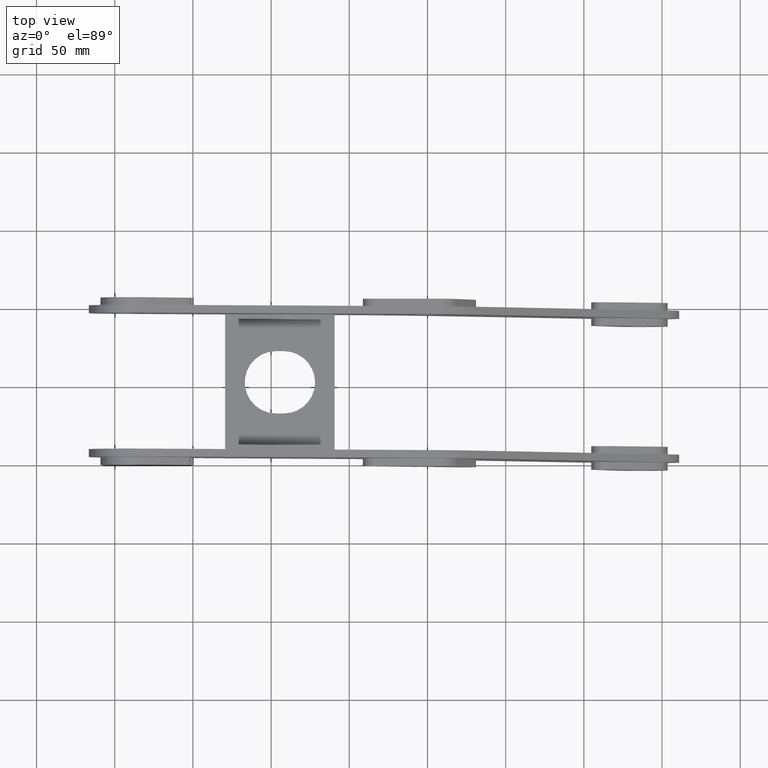
[diagram: clean part render]
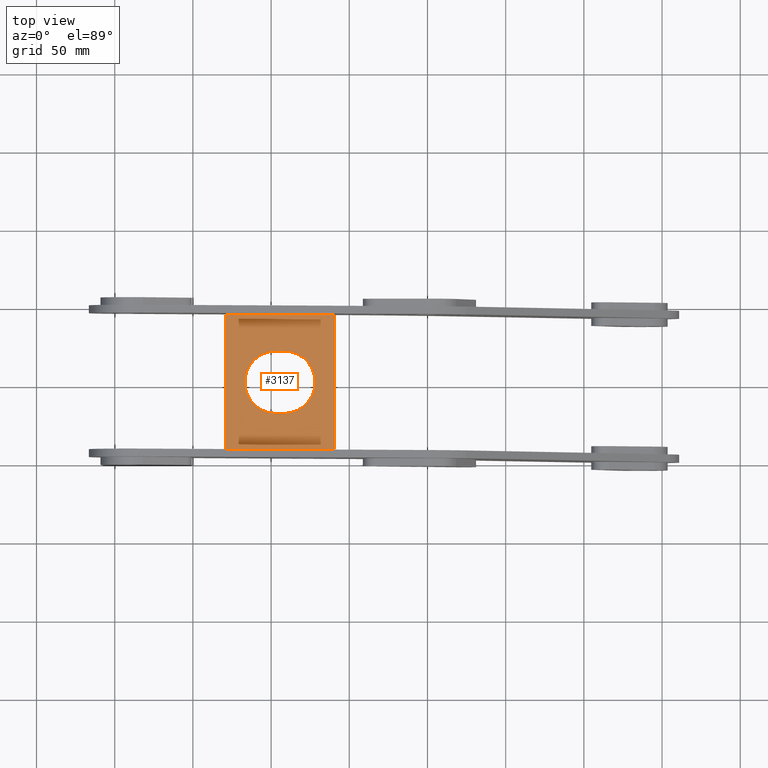
[diagram: same view with one face highlighted and labeled with its STEP entity id]
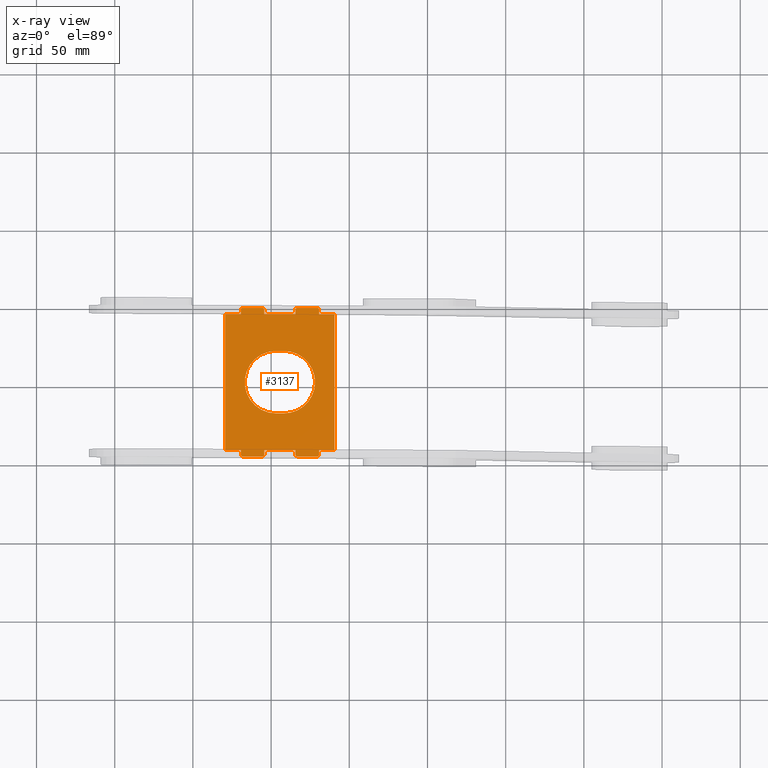
[diagram: x-ray of the same camera — body ghosted, the highlighted face saturated]
A machine part, top view. The second image highlights one B-rep face of the part: STEP entity #3137.
The next image is the same camera in x-ray: the body ghosted, the highlighted face saturated — about 0% of this face is hidden behind the body in this view.
In plain terms, the highlighted planar face has unit normal (0, 0, -1).
Its self-contained STEP definition (entity closure, byte-faithful):
#41 = CARTESIAN_POINT ( 'NONE',  ( 35.00000000000001421, -43.49999999999998579, 2.500000000000000000 ) ) ;
#45 = ORIENTED_EDGE ( 'NONE', *, *, #3278, .F. ) ;
#62 = CIRCLE ( 'NONE', #2350, 1.000000000000000888 ) ;
#71 = B_SPLINE_CURVE_WITH_KNOTS ( 'NONE', 1,
 ( #2461, #3650 ),
 .UNSPECIFIED., .F., .F.,
 ( 2, 2 ),
 ( 0.6500000000000000222, 0.9749999999999999778 ),
 .UNSPECIFIED. ) ;
#74 = DIRECTION ( 'NONE',  ( -1.000000000000000000, -1.982541115402065110E-16, 0.000000000000000000 ) ) ;
#89 = CARTESIAN_POINT ( 'NONE',  ( 10.00000000000001599, -46.49999999999998579, 2.500000000000000000 ) ) ;
#90 = VERTEX_POINT ( 'NONE', #317 ) ;
#100 = EDGE_CURVE ( 'NONE', #1893, #533, #3109, .T. ) ;
#102 = VERTEX_POINT ( 'NONE', #2080 ) ;
#109 = VERTEX_POINT ( 'NONE', #3751 ) ;
#110 = DIRECTION ( 'NONE',  ( -0.000000000000000000, 1.000000000000000000, -0.000000000000000000 ) ) ;
#134 = DIRECTION ( 'NONE',  ( -0.000000000000000000, 1.000000000000000000, -0.000000000000000000 ) ) ;
#142 = CARTESIAN_POINT ( 'NONE',  ( 0.000000000000000000, 0.000000000000000000, 2.500000000000000000 ) ) ;
#167 = ORIENTED_EDGE ( 'NONE', *, *, #3090, .F. ) ;
#178 = DIRECTION ( 'NONE',  ( 1.000000000000000000, 0.000000000000000000, 0.000000000000000000 ) ) ;
#194 = CARTESIAN_POINT ( 'NONE',  ( -10.99999999999998934, 46.49999999999998579, 2.500000000000000000 ) ) ;
#213 = DIRECTION ( 'NONE',  ( 1.000000000000000000, 0.000000000000000000, 0.000000000000000000 ) ) ;
#234 = CARTESIAN_POINT ( 'NONE',  ( -34.99999999999999289, -43.50000000000000000, 2.500000000000000000 ) ) ;
#237 = CARTESIAN_POINT ( 'NONE',  ( 24.00000000000001421, -46.49999999999998579, 2.500000000000000000 ) ) ;
#247 = ORIENTED_EDGE ( 'NONE', *, *, #1528, .T. ) ;
#253 = AXIS2_PLACEMENT_3D ( 'NONE', #1263, #398, #982 ) ;
#255 = CARTESIAN_POINT ( 'NONE',  ( -23.99999999999998579, 47.49999999999998579, 2.500000000000000000 ) ) ;
#286 = DIRECTION ( 'NONE',  ( 0.000000000000000000, -1.000000000000000000, 0.000000000000000000 ) ) ;
#317 = CARTESIAN_POINT ( 'NONE',  ( 10.00000000000001599, 46.49999999999998579, 2.500000000000000000 ) ) ;
#351 = ORIENTED_EDGE ( 'NONE', *, *, #100, .T. ) ;
#356 = CARTESIAN_POINT ( 'NONE',  ( -9.999999999999987566, 43.50000000000000711, 2.500000000000000000 ) ) ;
#362 = ORIENTED_EDGE ( 'NONE', *, *, #2855, .T. ) ;
#370 = VERTEX_POINT ( 'NONE', #1641 ) ;
#375 = LINE ( 'NONE', #2949, #430 ) ;
#376 = AXIS2_PLACEMENT_3D ( 'NONE', #1761, #403, #701 ) ;
#384 = EDGE_LOOP ( 'NONE', ( #3688, #2824, #45, #351, #1933, #2879, #247, #362, #2997, #3172, #2105, #1186, #1537, #2568, #1014, #3012, #2524, #386, #2131, #1181, #2505, #1505, #3228, #456, #1609, #1276, #1494, #2766 ) ) ;
#386 = ORIENTED_EDGE ( 'NONE', *, *, #3055, .F. ) ;
#392 = CARTESIAN_POINT ( 'NONE',  ( -10.99999999999998934, -47.49999999999998579, 2.500000000000000000 ) ) ;
#396 = CARTESIAN_POINT ( 'NONE',  ( -24.99999999999998579, -46.49999999999998579, 2.500000000000000000 ) ) ;
#398 = DIRECTION ( 'NONE',  ( 0.000000000000000000, 0.000000000000000000, 1.000000000000000000 ) ) ;
#403 = DIRECTION ( 'NONE',  ( 0.000000000000000000, 0.000000000000000000, 1.000000000000000000 ) ) ;
#430 = VECTOR ( 'NONE', #1473, 1000.000000000000000 ) ;
#435 = VECTOR ( 'NONE', #721, 1000.000000000000000 ) ;
#445 = DIRECTION ( 'NONE',  ( -0.000000000000000000, -0.000000000000000000, -1.000000000000000000 ) ) ;
#450 = CARTESIAN_POINT ( 'NONE',  ( 10.00000000000001599, -47.49999999999998579, 2.500000000000000000 ) ) ;
#456 = ORIENTED_EDGE ( 'NONE', *, *, #2857, .F. ) ;
#482 = CARTESIAN_POINT ( 'NONE',  ( 25.00000000000001421, -47.49999999999998579, 2.500000000000000000 ) ) ;
#523 = CARTESIAN_POINT ( 'NONE',  ( 35.00000000000000000, 43.50000000000001421, 2.500000000000000000 ) ) ;
#533 = VERTEX_POINT ( 'NONE', #3528 ) ;
#545 = DIRECTION ( 'NONE',  ( 1.000000000000000000, 1.982541115402065110E-16, -0.000000000000000000 ) ) ;
#569 = AXIS2_PLACEMENT_3D ( 'NONE', #3135, #1377, #213 ) ;
#575 = EDGE_CURVE ( 'NONE', #2495, #1503, #2082, .T. ) ;
#603 = VERTEX_POINT ( 'NONE', #234 ) ;
#616 = EDGE_CURVE ( 'NONE', #370, #2397, #2530, .T. ) ;
#667 = VERTEX_POINT ( 'NONE', #3798 ) ;
#674 = VERTEX_POINT ( 'NONE', #3816 ) ;
#690 = CIRCLE ( 'NONE', #3025, 1.000000000000000888 ) ;
#701 = DIRECTION ( 'NONE',  ( 1.000000000000000000, 0.000000000000000000, 0.000000000000000000 ) ) ;
#703 = EDGE_CURVE ( 'NONE', #1754, #853, #2694, .T. ) ;
#721 = DIRECTION ( 'NONE',  ( -1.000000000000000000, -1.982541115402065110E-16, 0.000000000000000000 ) ) ;
#726 = DIRECTION ( 'NONE',  ( 1.000000000000000000, 0.000000000000000000, 0.000000000000000000 ) ) ;
#738 = CARTESIAN_POINT ( 'NONE',  ( 24.00000000000001421, 47.49999999999998579, 2.500000000000000000 ) ) ;
#753 = CIRCLE ( 'NONE', #1789, 1.000000000000000888 ) ;
#759 = DIRECTION ( 'NONE',  ( -1.000000000000000000, 0.000000000000000000, -0.000000000000000000 ) ) ;
#766 = CARTESIAN_POINT ( 'NONE',  ( 35.00000000000001421, -43.49999999999998579, 2.500000000000000000 ) ) ;
#786 = CARTESIAN_POINT ( 'NONE',  ( 24.00000000000001421, 47.49999999999998579, 2.500000000000000000 ) ) ;
#792 = DIRECTION ( 'NONE',  ( 0.000000000000000000, 0.000000000000000000, -1.000000000000000000 ) ) ;
#804 = CIRCLE ( 'NONE', #3455, 1.000000000000000888 ) ;
#811 = CARTESIAN_POINT ( 'NONE',  ( -24.99999999999998579, 47.49999999999998579, 2.500000000000000000 ) ) ;
#837 = LINE ( 'NONE', #2377, #2967 ) ;
#853 = VERTEX_POINT ( 'NONE', #2456 ) ;
#879 = CARTESIAN_POINT ( 'NONE',  ( 35.00000000000001421, -43.49999999999998579, 2.500000000000000000 ) ) ;
#881 = AXIS2_PLACEMENT_3D ( 'NONE', #142, #792, #759 ) ;
#934 = VECTOR ( 'NONE', #2481, 1000.000000000000000 ) ;
#944 = EDGE_CURVE ( 'NONE', #2627, #667, #2823, .T. ) ;
#971 = DIRECTION ( 'NONE',  ( 1.000000000000000000, 0.000000000000000000, 0.000000000000000000 ) ) ;
#982 = DIRECTION ( 'NONE',  ( 1.000000000000000000, 0.000000000000000000, 0.000000000000000000 ) ) ;
#991 = EDGE_CURVE ( 'NONE', #1184, #2495, #690, .T. ) ;
#1006 = CARTESIAN_POINT ( 'NONE',  ( 35.00000000000000000, 43.50000000000001421, 2.500000000000000000 ) ) ;
#1014 = ORIENTED_EDGE ( 'NONE', *, *, #1336, .T. ) ;
#1019 = LINE ( 'NONE', #1589, #2588 ) ;
#1034 = VERTEX_POINT ( 'NONE', #3698 ) ;
#1093 = CARTESIAN_POINT ( 'NONE',  ( 35.00000000000001421, -43.49999999999998579, 2.500000000000000000 ) ) ;
#1125 = CARTESIAN_POINT ( 'NONE',  ( -9.999999999999987566, -46.49999999999998579, 2.500000000000000000 ) ) ;
#1132 = DIRECTION ( 'NONE',  ( -0.000000000000000000, 0.000000000000000000, 1.000000000000000000 ) ) ;
#1136 = EDGE_CURVE ( 'NONE', #667, #2399, #1716, .T. ) ;
#1167 = DIRECTION ( 'NONE',  ( -1.000000000000000000, -0.000000000000000000, -0.000000000000000000 ) ) ;
#1181 = ORIENTED_EDGE ( 'NONE', *, *, #3728, .F. ) ;
#1184 = VERTEX_POINT ( 'NONE', #1756 ) ;
#1186 = ORIENTED_EDGE ( 'NONE', *, *, #2284, .T. ) ;
#1191 = CARTESIAN_POINT ( 'NONE',  ( -23.99999999999998579, 47.49999999999998579, 2.500000000000000000 ) ) ;
#1194 = CARTESIAN_POINT ( 'NONE',  ( 25.00000000000001421, 43.50000000000001421, 2.500000000000000000 ) ) ;
#1237 = CARTESIAN_POINT ( 'NONE',  ( 35.00000000000000000, 43.50000000000001421, 2.500000000000000000 ) ) ;
#1263 = CARTESIAN_POINT ( 'NONE',  ( 2.500000000000000000, -3.469446951953614189E-15, 2.500000000000000000 ) ) ;
#1269 = CARTESIAN_POINT ( 'NONE',  ( -9.999999999999987566, -47.49999999999998579, 2.500000000000000000 ) ) ;
#1270 = DIRECTION ( 'NONE',  ( -0.000000000000000000, -0.000000000000000000, -1.000000000000000000 ) ) ;
#1276 = ORIENTED_EDGE ( 'NONE', *, *, #991, .F. ) ;
#1294 = VERTEX_POINT ( 'NONE', #1125 ) ;
#1300 = LINE ( 'NONE', #3707, #1850 ) ;
#1301 = DIRECTION ( 'NONE',  ( -0.000000000000000000, -0.000000000000000000, -1.000000000000000000 ) ) ;
#1304 = CARTESIAN_POINT ( 'NONE',  ( 2.499999999999996447, -20.00000000000000000, 2.500000000000000000 ) ) ;
#1317 = CARTESIAN_POINT ( 'NONE',  ( 25.00000000000001421, -46.49999999999998579, 2.500000000000000000 ) ) ;
#1329 = EDGE_CURVE ( 'NONE', #2397, #1596, #837, .T. ) ;
#1336 = EDGE_CURVE ( 'NONE', #2399, #109, #1773, .T. ) ;
#1343 = FACE_BOUND ( 'NONE', #2500, .T. ) ;
#1362 = VECTOR ( 'NONE', #2433, 1000.000000000000000 ) ;
#1377 = DIRECTION ( 'NONE',  ( -0.000000000000000000, 0.000000000000000000, 1.000000000000000000 ) ) ;
#1394 = EDGE_CURVE ( 'NONE', #2980, #3490, #2513, .T. ) ;
#1404 = CARTESIAN_POINT ( 'NONE',  ( -24.99999999999998579, -47.49999999999998579, 2.500000000000000000 ) ) ;
#1412 = CARTESIAN_POINT ( 'NONE',  ( -2.500000000000000000, -3.469446951953614189E-15, 2.500000000000000000 ) ) ;
#1414 = DIRECTION ( 'NONE',  ( 1.000000000000000000, 0.000000000000000000, 0.000000000000000000 ) ) ;
#1470 = DIRECTION ( 'NONE',  ( -0.000000000000000000, 0.000000000000000000, 1.000000000000000000 ) ) ;
#1473 = DIRECTION ( 'NONE',  ( 0.000000000000000000, -1.000000000000000000, 0.000000000000000000 ) ) ;
#1482 = VECTOR ( 'NONE', #2986, 1000.000000000000000 ) ;
#1485 = VERTEX_POINT ( 'NONE', #3656 ) ;
#1494 = ORIENTED_EDGE ( 'NONE', *, *, #1718, .T. ) ;
#1503 = VERTEX_POINT ( 'NONE', #2122 ) ;
#1505 = ORIENTED_EDGE ( 'NONE', *, *, #3091, .T. ) ;
#1528 = EDGE_CURVE ( 'NONE', #1294, #674, #2760, .T. ) ;
#1537 = ORIENTED_EDGE ( 'NONE', *, *, #944, .T. ) ;
#1548 = CIRCLE ( 'NONE', #376, 19.99999999999999645 ) ;
#1581 = CARTESIAN_POINT ( 'NONE',  ( 11.00000000000001599, -47.49999999999998579, 2.500000000000000000 ) ) ;
#1589 = CARTESIAN_POINT ( 'NONE',  ( -35.00000000000000000, 43.50000000000000000, 2.500000000000000000 ) ) ;
#1593 = ORIENTED_EDGE ( 'NONE', *, *, #616, .F. ) ;
#1596 = VERTEX_POINT ( 'NONE', #1304 ) ;
#1605 = VECTOR ( 'NONE', #1167, 1000.000000000000000 ) ;
#1609 = ORIENTED_EDGE ( 'NONE', *, *, #575, .F. ) ;
#1641 = CARTESIAN_POINT ( 'NONE',  ( -2.500000000000000000, 19.99999999999999645, 2.500000000000000000 ) ) ;
#1660 = VECTOR ( 'NONE', #3221, 1000.000000000000000 ) ;
#1716 = LINE ( 'NONE', #879, #1790 ) ;
#1718 = EDGE_CURVE ( 'NONE', #1184, #1754, #2642, .T. ) ;
#1726 = VECTOR ( 'NONE', #74, 1000.000000000000000 ) ;
#1754 = VERTEX_POINT ( 'NONE', #2045 ) ;
#1756 = CARTESIAN_POINT ( 'NONE',  ( -24.99999999999998579, 46.49999999999998579, 2.500000000000000000 ) ) ;
#1761 = CARTESIAN_POINT ( 'NONE',  ( 2.500000000000000000, -3.469446951953614189E-15, 2.500000000000000000 ) ) ;
#1773 = LINE ( 'NONE', #523, #2781 ) ;
#1776 = DIRECTION ( 'NONE',  ( 0.000000000000000000, 0.000000000000000000, 1.000000000000000000 ) ) ;
#1785 = CARTESIAN_POINT ( 'NONE',  ( 24.00000000000001421, -47.49999999999998579, 2.500000000000000000 ) ) ;
#1789 = AXIS2_PLACEMENT_3D ( 'NONE', #2451, #1470, #2141 ) ;
#1790 = VECTOR ( 'NONE', #545, 1000.000000000000000 ) ;
#1800 = CIRCLE ( 'NONE', #3096, 1.000000000000000888 ) ;
#1804 = CARTESIAN_POINT ( 'NONE',  ( 10.00000000000001599, 47.49999999999998579, 2.500000000000000000 ) ) ;
#1850 = VECTOR ( 'NONE', #3139, 1000.000000000000000 ) ;
#1862 = VERTEX_POINT ( 'NONE', #356 ) ;
#1871 = LINE ( 'NONE', #3048, #1605 ) ;
#1893 = VERTEX_POINT ( 'NONE', #396 ) ;
#1897 = LINE ( 'NONE', #766, #934 ) ;
#1933 = ORIENTED_EDGE ( 'NONE', *, *, #3551, .T. ) ;
#1959 = DIRECTION ( 'NONE',  ( 1.000000000000000000, 1.982541115402065110E-16, -0.000000000000000000 ) ) ;
#1978 = CARTESIAN_POINT ( 'NONE',  ( 22.49999999999999645, -3.469446951953614189E-15, 2.500000000000000000 ) ) ;
#1979 = AXIS2_PLACEMENT_3D ( 'NONE', #1412, #1776, #2575 ) ;
#2036 = CARTESIAN_POINT ( 'NONE',  ( 10.00000000000001599, -43.49999999999999289, 2.500000000000000000 ) ) ;
#2045 = CARTESIAN_POINT ( 'NONE',  ( -24.99999999999998579, 43.49999999999998579, 2.500000000000000000 ) ) ;
#2062 = CARTESIAN_POINT ( 'NONE',  ( -23.99999999999998579, -46.49999999999998579, 2.500000000000000000 ) ) ;
#2063 = LINE ( 'NONE', #3820, #1660 ) ;
#2080 = CARTESIAN_POINT ( 'NONE',  ( 11.00000000000001599, 47.49999999999998579, 2.500000000000000000 ) ) ;
#2082 = B_SPLINE_CURVE_WITH_KNOTS ( 'NONE', 1,
 ( #255, #2651 ),
 .UNSPECIFIED., .F., .F.,
 ( 2, 2 ),
 ( 0.6500000000000000222, 0.9749999999999999778 ),
 .UNSPECIFIED. ) ;
#2100 = EDGE_CURVE ( 'NONE', #853, #603, #1019, .T. ) ;
#2105 = ORIENTED_EDGE ( 'NONE', *, *, #1394, .T. ) ;
#2122 = CARTESIAN_POINT ( 'NONE',  ( -10.99999999999998934, 47.49999999999998579, 2.500000000000000000 ) ) ;
#2131 = ORIENTED_EDGE ( 'NONE', *, *, #2849, .F. ) ;
#2141 = DIRECTION ( 'NONE',  ( 1.000000000000000000, 0.000000000000000000, 0.000000000000000000 ) ) ;
#2175 = CARTESIAN_POINT ( 'NONE',  ( 24.00000000000001421, 46.49999999999998579, 2.500000000000000000 ) ) ;
#2198 = EDGE_CURVE ( 'NONE', #1485, #3284, #1300, .T. ) ;
#2201 = LINE ( 'NONE', #450, #2534 ) ;
#2239 = EDGE_CURVE ( 'NONE', #109, #3284, #2063, .T. ) ;
#2284 = EDGE_CURVE ( 'NONE', #3490, #2627, #804, .T. ) ;
#2285 = VECTOR ( 'NONE', #110, 1000.000000000000000 ) ;
#2293 = LINE ( 'NONE', #1404, #3405 ) ;
#2350 = AXIS2_PLACEMENT_3D ( 'NONE', #194, #3467, #1414 ) ;
#2377 = CARTESIAN_POINT ( 'NONE',  ( -2.500000000000000000, -19.99999999999999645, 2.500000000000000000 ) ) ;
#2395 = ORIENTED_EDGE ( 'NONE', *, *, #3425, .F. ) ;
#2397 = VERTEX_POINT ( 'NONE', #3512 ) ;
#2399 = VERTEX_POINT ( 'NONE', #41 ) ;
#2412 = VECTOR ( 'NONE', #286, 1000.000000000000000 ) ;
#2433 = DIRECTION ( 'NONE',  ( -0.000000000000000000, 1.000000000000000000, -0.000000000000000000 ) ) ;
#2449 = VERTEX_POINT ( 'NONE', #2680 ) ;
#2451 = CARTESIAN_POINT ( 'NONE',  ( 11.00000000000001599, -46.49999999999998579, 2.500000000000000000 ) ) ;
#2456 = CARTESIAN_POINT ( 'NONE',  ( -35.00000000000000000, 43.50000000000000000, 2.500000000000000000 ) ) ;
#2461 = CARTESIAN_POINT ( 'NONE',  ( -23.99999999999998579, -47.49999999999998579, 2.500000000000000000 ) ) ;
#2481 = DIRECTION ( 'NONE',  ( 1.000000000000000000, 1.982541115402065110E-16, -0.000000000000000000 ) ) ;
#2492 = VERTEX_POINT ( 'NONE', #3240 ) ;
#2495 = VERTEX_POINT ( 'NONE', #1191 ) ;
#2500 = EDGE_LOOP ( 'NONE', ( #2919, #1593, #167, #2395, #3500 ) ) ;
#2501 = DIRECTION ( 'NONE',  ( 1.595148023886719315E-16, -1.000000000000000000, 0.000000000000000000 ) ) ;
#2505 = ORIENTED_EDGE ( 'NONE', *, *, #2582, .T. ) ;
#2513 = B_SPLINE_CURVE_WITH_KNOTS ( 'NONE', 1,
 ( #3189, #2899 ),
 .UNSPECIFIED., .F., .F.,
 ( 2, 2 ),
 ( 0.6500000000000000222, 0.9749999999999999778 ),
 .UNSPECIFIED. ) ;
#2524 = ORIENTED_EDGE ( 'NONE', *, *, #2198, .F. ) ;
#2530 = CIRCLE ( 'NONE', #1979, 19.99999999999999645 ) ;
#2534 = VECTOR ( 'NONE', #134, 1000.000000000000000 ) ;
#2544 = EDGE_CURVE ( 'NONE', #1034, #1862, #375, .T. ) ;
#2568 = ORIENTED_EDGE ( 'NONE', *, *, #1136, .T. ) ;
#2575 = DIRECTION ( 'NONE',  ( 1.000000000000000000, 0.000000000000000000, 0.000000000000000000 ) ) ;
#2582 = EDGE_CURVE ( 'NONE', #90, #3382, #3275, .T. ) ;
#2588 = VECTOR ( 'NONE', #2501, 1000.000000000000000 ) ;
#2597 = VECTOR ( 'NONE', #1959, 1000.000000000000000 ) ;
#2600 = DIRECTION ( 'NONE',  ( 1.000000000000000000, 0.000000000000000000, 0.000000000000000000 ) ) ;
#2623 = CARTESIAN_POINT ( 'NONE',  ( 10.00000000000001599, 43.49999999999998579, 2.500000000000000000 ) ) ;
#2627 = VERTEX_POINT ( 'NONE', #1317 ) ;
#2642 = LINE ( 'NONE', #811, #2412 ) ;
#2651 = CARTESIAN_POINT ( 'NONE',  ( -10.99999999999998934, 47.49999999999998579, 2.500000000000000000 ) ) ;
#2652 = LINE ( 'NONE', #1006, #435 ) ;
#2654 = EDGE_CURVE ( 'NONE', #603, #2449, #1897, .T. ) ;
#2664 = CIRCLE ( 'NONE', #3400, 1.000000000000000888 ) ;
#2680 = CARTESIAN_POINT ( 'NONE',  ( -24.99999999999998579, -43.50000000000000000, 2.500000000000000000 ) ) ;
#2691 = EDGE_CURVE ( 'NONE', #3049, #2811, #2201, .T. ) ;
#2694 = LINE ( 'NONE', #1237, #1726 ) ;
#2732 = VERTEX_POINT ( 'NONE', #392 ) ;
#2760 = LINE ( 'NONE', #1269, #1362 ) ;
#2766 = ORIENTED_EDGE ( 'NONE', *, *, #703, .T. ) ;
#2781 = VECTOR ( 'NONE', #2957, 1000.000000000000000 ) ;
#2803 = B_SPLINE_CURVE_WITH_KNOTS ( 'NONE', 1,
 ( #2868, #786 ),
 .UNSPECIFIED., .F., .F.,
 ( 2, 2 ),
 ( 0.6500000000000000222, 0.9749999999999999778 ),
 .UNSPECIFIED. ) ;
#2811 = VERTEX_POINT ( 'NONE', #2036 ) ;
#2823 = LINE ( 'NONE', #482, #2285 ) ;
#2824 = ORIENTED_EDGE ( 'NONE', *, *, #2654, .T. ) ;
#2834 = FACE_OUTER_BOUND ( 'NONE', #384, .T. ) ;
#2849 = EDGE_CURVE ( 'NONE', #102, #3185, #2803, .T. ) ;
#2855 = EDGE_CURVE ( 'NONE', #674, #2811, #3447, .T. ) ;
#2857 = EDGE_CURVE ( 'NONE', #1503, #1034, #62, .T. ) ;
#2860 = VERTEX_POINT ( 'NONE', #1978 ) ;
#2868 = CARTESIAN_POINT ( 'NONE',  ( 11.00000000000001599, 47.49999999999998579, 2.500000000000000000 ) ) ;
#2879 = ORIENTED_EDGE ( 'NONE', *, *, #2880, .T. ) ;
#2880 = EDGE_CURVE ( 'NONE', #2732, #1294, #3092, .T. ) ;
#2899 = CARTESIAN_POINT ( 'NONE',  ( 24.00000000000001421, -47.49999999999998579, 2.500000000000000000 ) ) ;
#2919 = ORIENTED_EDGE ( 'NONE', *, *, #1329, .F. ) ;
#2940 = DIRECTION ( 'NONE',  ( 1.000000000000000000, 0.000000000000000000, 0.000000000000000000 ) ) ;
#2949 = CARTESIAN_POINT ( 'NONE',  ( -9.999999999999987566, 47.49999999999998579, 2.500000000000000000 ) ) ;
#2957 = DIRECTION ( 'NONE',  ( -1.595148023886719315E-16, 1.000000000000000000, -0.000000000000000000 ) ) ;
#2967 = VECTOR ( 'NONE', #2940, 1000.000000000000000 ) ;
#2980 = VERTEX_POINT ( 'NONE', #1581 ) ;
#2986 = DIRECTION ( 'NONE',  ( 0.000000000000000000, -1.000000000000000000, 0.000000000000000000 ) ) ;
#2997 = ORIENTED_EDGE ( 'NONE', *, *, #2691, .F. ) ;
#3012 = ORIENTED_EDGE ( 'NONE', *, *, #2239, .T. ) ;
#3025 = AXIS2_PLACEMENT_3D ( 'NONE', #3095, #445, #726 ) ;
#3041 = EDGE_CURVE ( 'NONE', #1596, #2860, #1548, .T. ) ;
#3048 = CARTESIAN_POINT ( 'NONE',  ( -2.500000000000000000, 19.99999999999999645, 2.500000000000000000 ) ) ;
#3049 = VERTEX_POINT ( 'NONE', #89 ) ;
#3055 = EDGE_CURVE ( 'NONE', #3185, #1485, #2664, .T. ) ;
#3062 = CARTESIAN_POINT ( 'NONE',  ( 11.00000000000001599, 46.49999999999998579, 2.500000000000000000 ) ) ;
#3066 = EDGE_CURVE ( 'NONE', #3049, #2980, #753, .T. ) ;
#3090 = EDGE_CURVE ( 'NONE', #2492, #370, #1871, .T. ) ;
#3091 = EDGE_CURVE ( 'NONE', #3382, #1862, #2652, .T. ) ;
#3092 = CIRCLE ( 'NONE', #569, 1.000000000000000888 ) ;
#3095 = CARTESIAN_POINT ( 'NONE',  ( -23.99999999999998579, 46.49999999999998579, 2.500000000000000000 ) ) ;
#3096 = AXIS2_PLACEMENT_3D ( 'NONE', #3062, #1301, #178 ) ;
#3109 = CIRCLE ( 'NONE', #3672, 1.000000000000000888 ) ;
#3135 = CARTESIAN_POINT ( 'NONE',  ( -10.99999999999998934, -46.49999999999998579, 2.500000000000000000 ) ) ;
#3137 = ADVANCED_FACE ( 'NONE', ( #1343, #2834 ), #3398, .F. ) ;
#3139 = DIRECTION ( 'NONE',  ( 0.000000000000000000, -1.000000000000000000, 0.000000000000000000 ) ) ;
#3172 = ORIENTED_EDGE ( 'NONE', *, *, #3066, .T. ) ;
#3185 = VERTEX_POINT ( 'NONE', #738 ) ;
#3189 = CARTESIAN_POINT ( 'NONE',  ( 11.00000000000001599, -47.49999999999998579, 2.500000000000000000 ) ) ;
#3221 = DIRECTION ( 'NONE',  ( -1.000000000000000000, -1.982541115402065110E-16, 0.000000000000000000 ) ) ;
#3228 = ORIENTED_EDGE ( 'NONE', *, *, #2544, .F. ) ;
#3240 = CARTESIAN_POINT ( 'NONE',  ( 2.500000000000000000, 19.99999999999999645, 2.500000000000000000 ) ) ;
#3275 = LINE ( 'NONE', #1804, #1482 ) ;
#3278 = EDGE_CURVE ( 'NONE', #1893, #2449, #2293, .T. ) ;
#3284 = VERTEX_POINT ( 'NONE', #1194 ) ;
#3382 = VERTEX_POINT ( 'NONE', #2623 ) ;
#3398 = PLANE ( 'NONE',  #881 ) ;
#3400 = AXIS2_PLACEMENT_3D ( 'NONE', #2175, #1270, #971 ) ;
#3405 = VECTOR ( 'NONE', #3825, 1000.000000000000000 ) ;
#3425 = EDGE_CURVE ( 'NONE', #2860, #2492, #3465, .T. ) ;
#3447 = LINE ( 'NONE', #1093, #2597 ) ;
#3455 = AXIS2_PLACEMENT_3D ( 'NONE', #237, #1132, #2600 ) ;
#3465 = CIRCLE ( 'NONE', #253, 19.99999999999999645 ) ;
#3467 = DIRECTION ( 'NONE',  ( -0.000000000000000000, -0.000000000000000000, -1.000000000000000000 ) ) ;
#3490 = VERTEX_POINT ( 'NONE', #1785 ) ;
#3500 = ORIENTED_EDGE ( 'NONE', *, *, #3041, .F. ) ;
#3512 = CARTESIAN_POINT ( 'NONE',  ( -2.500000000000000000, -19.99999999999999645, 2.500000000000000000 ) ) ;
#3528 = CARTESIAN_POINT ( 'NONE',  ( -23.99999999999998579, -47.49999999999998579, 2.500000000000000000 ) ) ;
#3551 = EDGE_CURVE ( 'NONE', #533, #2732, #71, .T. ) ;
#3555 = DIRECTION ( 'NONE',  ( 1.000000000000000000, 0.000000000000000000, 0.000000000000000000 ) ) ;
#3650 = CARTESIAN_POINT ( 'NONE',  ( -10.99999999999998934, -47.49999999999998579, 2.500000000000000000 ) ) ;
#3656 = CARTESIAN_POINT ( 'NONE',  ( 25.00000000000001421, 46.49999999999998579, 2.500000000000000000 ) ) ;
#3672 = AXIS2_PLACEMENT_3D ( 'NONE', #2062, #3767, #3555 ) ;
#3688 = ORIENTED_EDGE ( 'NONE', *, *, #2100, .T. ) ;
#3698 = CARTESIAN_POINT ( 'NONE',  ( -9.999999999999987566, 46.49999999999998579, 2.500000000000000000 ) ) ;
#3707 = CARTESIAN_POINT ( 'NONE',  ( 25.00000000000001421, 47.49999999999998579, 2.500000000000000000 ) ) ;
#3728 = EDGE_CURVE ( 'NONE', #90, #102, #1800, .T. ) ;
#3751 = CARTESIAN_POINT ( 'NONE',  ( 35.00000000000000000, 43.50000000000001421, 2.500000000000000000 ) ) ;
#3767 = DIRECTION ( 'NONE',  ( -0.000000000000000000, 0.000000000000000000, 1.000000000000000000 ) ) ;
#3798 = CARTESIAN_POINT ( 'NONE',  ( 25.00000000000001421, -43.49999999999998579, 2.500000000000000000 ) ) ;
#3816 = CARTESIAN_POINT ( 'NONE',  ( -9.999999999999987566, -43.49999999999998579, 2.500000000000000000 ) ) ;
#3820 = CARTESIAN_POINT ( 'NONE',  ( 35.00000000000000000, 43.50000000000001421, 2.500000000000000000 ) ) ;
#3825 = DIRECTION ( 'NONE',  ( -0.000000000000000000, 1.000000000000000000, -0.000000000000000000 ) ) ;